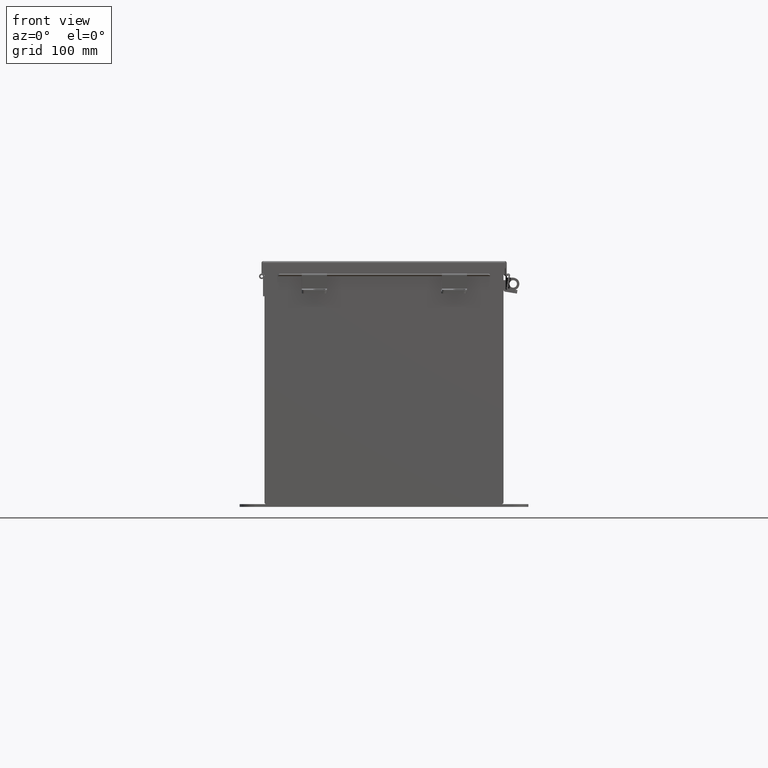
[diagram: clean part render]
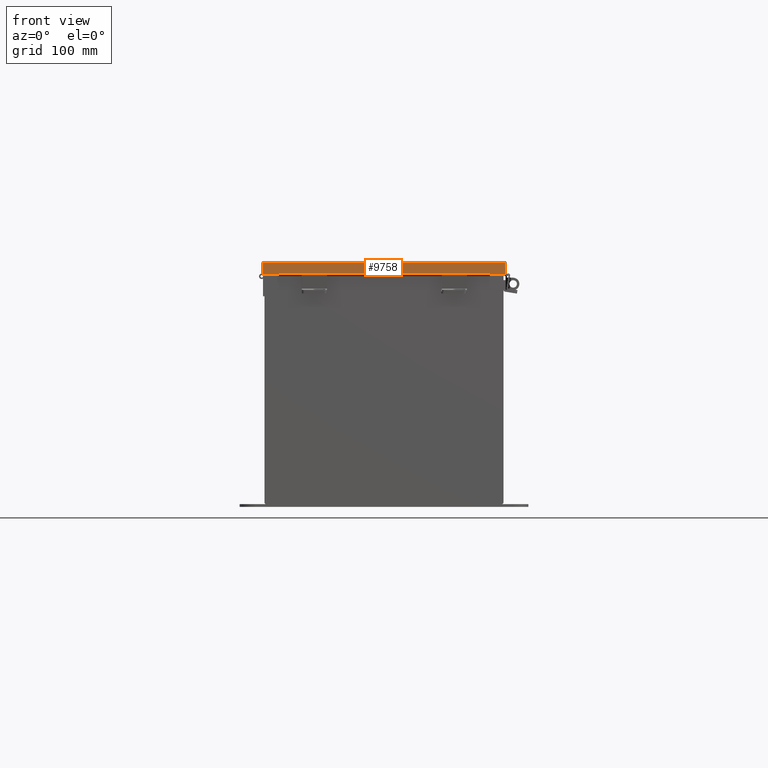
[diagram: same view with one face highlighted and labeled with its STEP entity id]
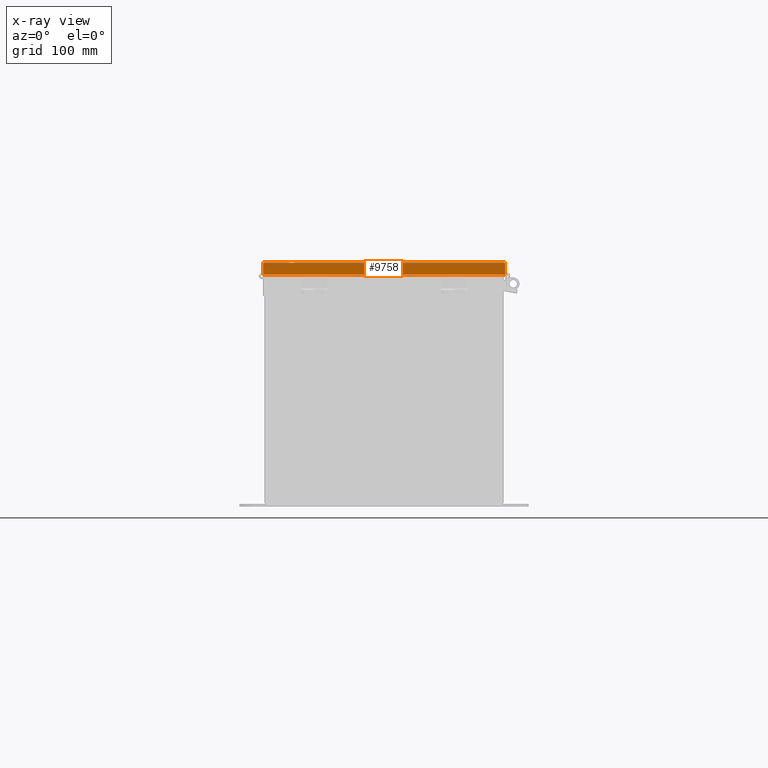
[diagram: x-ray of the same camera — body ghosted, the highlighted face saturated]
A machine part, front view. The second image highlights one B-rep face of the part: STEP entity #9758.
The next image is the same camera in x-ray: the body ghosted, the highlighted face saturated — about 0% of this face is hidden behind the body in this view.
In plain terms, the highlighted planar face has unit normal (0, 1, -0).
Its self-contained STEP definition (entity closure, byte-faithful):
#1041 = ORIENTED_EDGE ( 'NONE', *, *, #21996, .F. ) ;
#1335 = DIRECTION ( 'NONE',  ( -1.000000000000000000, 4.877861242606621500E-043, 5.546899479520645900E-018 ) ) ;
#2000 = CARTESIAN_POINT ( 'NONE',  ( 0.0000000000000000000, -15.15625000000000000, -5.463695987328526600E-014 ) ) ;
#2185 = CARTESIAN_POINT ( 'NONE',  ( -6.156249999999997300, -15.15625000000000000, 0.01300000000000010700 ) ) ;
#2439 = VECTOR ( 'NONE', #15251, 39.37007874015748100 ) ;
#3043 = CARTESIAN_POINT ( 'NONE',  ( -5.335640612625514100E-018, -15.15625000000000200, 0.6123000000000005100 ) ) ;
#3105 = CARTESIAN_POINT ( 'NONE',  ( -5.324478932188133000, -15.15625000000000200, 0.5967115427318804300 ) ) ;
#3847 = VECTOR ( 'NONE', #1335, 39.37007874015748100 ) ;
#3941 = CARTESIAN_POINT ( 'NONE',  ( -6.074478932188134700, -15.15625000000000200, 0.6123000000000005100 ) ) ;
#4023 = LINE ( 'NONE', #9850, #14133 ) ;
#4258 = EDGE_CURVE ( 'NONE', #8061, #21914, #7286, .T. ) ;
#5605 = CARTESIAN_POINT ( 'NONE',  ( -5.324478932188134700, -15.15625000000000200, 0.6123000000000005100 ) ) ;
#5685 = EDGE_LOOP ( 'NONE', ( #11135, #26250, #26360, #21656, #12630, #19601, #1041, #23638 ) ) ;
#6037 = VECTOR ( 'NONE', #13099, 39.37007874015748100 ) ;
#6042 = DIRECTION ( 'NONE',  ( 7.009925220121392600E-014, -1.401985044024278500E-013, -1.000000000000000000 ) ) ;
#6102 = PLANE ( 'NONE',  #13059 ) ;
#6553 = VERTEX_POINT ( 'NONE', #12085 ) ;
#6653 = VECTOR ( 'NONE', #10343, 39.37007874015748100 ) ;
#7286 = LINE ( 'NONE', #21300, #6037 ) ;
#7431 = EDGE_CURVE ( 'NONE', #7557, #21166, #13195, .T. ) ;
#7557 = VERTEX_POINT ( 'NONE', #15667 ) ;
#7636 = EDGE_CURVE ( 'NONE', #21261, #7557, #4023, .T. ) ;
#8061 = VERTEX_POINT ( 'NONE', #3105 ) ;
#9245 = LINE ( 'NONE', #9394, #3847 ) ;
#9394 = CARTESIAN_POINT ( 'NONE',  ( -5.335640612625514100E-018, -15.15625000000000200, 0.6123000000000005100 ) ) ;
#9758 = ADVANCED_FACE ( 'NONE', ( #23909 ), #6102, .F. ) ;
#9850 = CARTESIAN_POINT ( 'NONE',  ( 6.074478932188137400, -15.15625000000000000, -5.463695987328526600E-014 ) ) ;
#10343 = DIRECTION ( 'NONE',  ( -1.000000000000000000, 2.465190328864458800E-032, -0.0000000000000000000 ) ) ;
#10882 = VECTOR ( 'NONE', #15559, 39.37007874015748100 ) ;
#11135 = ORIENTED_EDGE ( 'NONE', *, *, #17771, .F. ) ;
#12085 = CARTESIAN_POINT ( 'NONE',  ( -6.074478932188134700, -15.15625000000000000, 0.01300000000000010700 ) ) ;
#12183 = DIRECTION ( 'NONE',  ( 0.0000000000000000000, -3.569293475308526100E-015, 1.000000000000000000 ) ) ;
#12593 = VECTOR ( 'NONE', #6042, 39.37007874015748100 ) ;
#12630 = ORIENTED_EDGE ( 'NONE', *, *, #7636, .T. ) ;
#12707 = CARTESIAN_POINT ( 'NONE',  ( 5.324478932188136500, -15.15625000000000200, 0.5967115427318804300 ) ) ;
#13059 = AXIS2_PLACEMENT_3D ( 'NONE', #2000, #24357, #12183 ) ;
#13099 = DIRECTION ( 'NONE',  ( 1.000000000000000000, -4.879687452983731800E-043, -0.0000000000000000000 ) ) ;
#13195 = LINE ( 'NONE', #3043, #2439 ) ;
#14133 = VECTOR ( 'NONE', #19947, 39.37007874015748100 ) ;
#14422 = CARTESIAN_POINT ( 'NONE',  ( 5.324478932188137400, -15.15625000000000200, 0.6123000000000005100 ) ) ;
#15251 = DIRECTION ( 'NONE',  ( -1.000000000000000000, 4.877861242606621500E-043, 5.546899479520645900E-018 ) ) ;
#15559 = DIRECTION ( 'NONE',  ( -0.0000000000000000000, -3.569293475308526100E-015, 1.000000000000000000 ) ) ;
#15599 = LINE ( 'NONE', #19108, #20389 ) ;
#15667 = CARTESIAN_POINT ( 'NONE',  ( 6.074478932188137400, -15.15625000000000200, 0.6123000000000005100 ) ) ;
#16121 = EDGE_CURVE ( 'NONE', #21261, #6553, #23466, .T. ) ;
#17771 = EDGE_CURVE ( 'NONE', #19461, #8061, #24048, .T. ) ;
#18778 = CARTESIAN_POINT ( 'NONE',  ( 6.074478932188137400, -15.15625000000000000, 0.01300000000000010700 ) ) ;
#19108 = CARTESIAN_POINT ( 'NONE',  ( 5.324478932188136500, -15.15625000000000500, 0.5967115427318804300 ) ) ;
#19461 = VERTEX_POINT ( 'NONE', #5605 ) ;
#19601 = ORIENTED_EDGE ( 'NONE', *, *, #7431, .T. ) ;
#19947 = DIRECTION ( 'NONE',  ( 0.0000000000000000000, -3.569293475308526100E-015, 1.000000000000000000 ) ) ;
#20389 = VECTOR ( 'NONE', #21151, 39.37007874015748100 ) ;
#21053 = LINE ( 'NONE', #21616, #10882 ) ;
#21151 = DIRECTION ( 'NONE',  ( 0.0000000000000000000, 1.401985044024247700E-013, 1.000000000000000000 ) ) ;
#21166 = VERTEX_POINT ( 'NONE', #14422 ) ;
#21261 = VERTEX_POINT ( 'NONE', #18778 ) ;
#21300 = CARTESIAN_POINT ( 'NONE',  ( -5.324478932188134700, -15.15625000000000500, 0.5967115427318804300 ) ) ;
#21505 = EDGE_CURVE ( 'NONE', #6553, #26197, #21053, .T. ) ;
#21616 = CARTESIAN_POINT ( 'NONE',  ( -6.074478932188134700, -15.15625000000000000, 0.0000000000000000000 ) ) ;
#21656 = ORIENTED_EDGE ( 'NONE', *, *, #16121, .F. ) ;
#21914 = VERTEX_POINT ( 'NONE', #12707 ) ;
#21996 = EDGE_CURVE ( 'NONE', #21914, #21166, #15599, .T. ) ;
#22170 = CARTESIAN_POINT ( 'NONE',  ( -5.324478932188134700, -15.15625000000000400, 0.6122999999999982900 ) ) ;
#22761 = EDGE_CURVE ( 'NONE', #19461, #26197, #9245, .T. ) ;
#23466 = LINE ( 'NONE', #2185, #6653 ) ;
#23638 = ORIENTED_EDGE ( 'NONE', *, *, #4258, .F. ) ;
#23909 = FACE_OUTER_BOUND ( 'NONE', #5685, .T. ) ;
#24048 = LINE ( 'NONE', #22170, #12593 ) ;
#24357 = DIRECTION ( 'NONE',  ( 2.386994929399596400E-032, 1.000000000000000000, 3.569293475308526100E-015 ) ) ;
#26197 = VERTEX_POINT ( 'NONE', #3941 ) ;
#26250 = ORIENTED_EDGE ( 'NONE', *, *, #22761, .T. ) ;
#26360 = ORIENTED_EDGE ( 'NONE', *, *, #21505, .F. ) ;